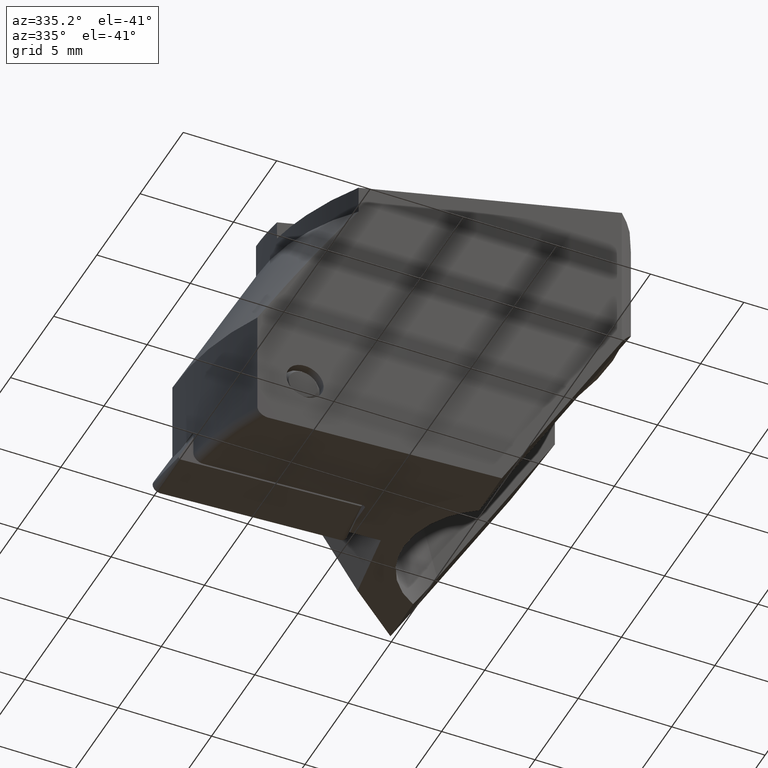
[diagram: clean part render]
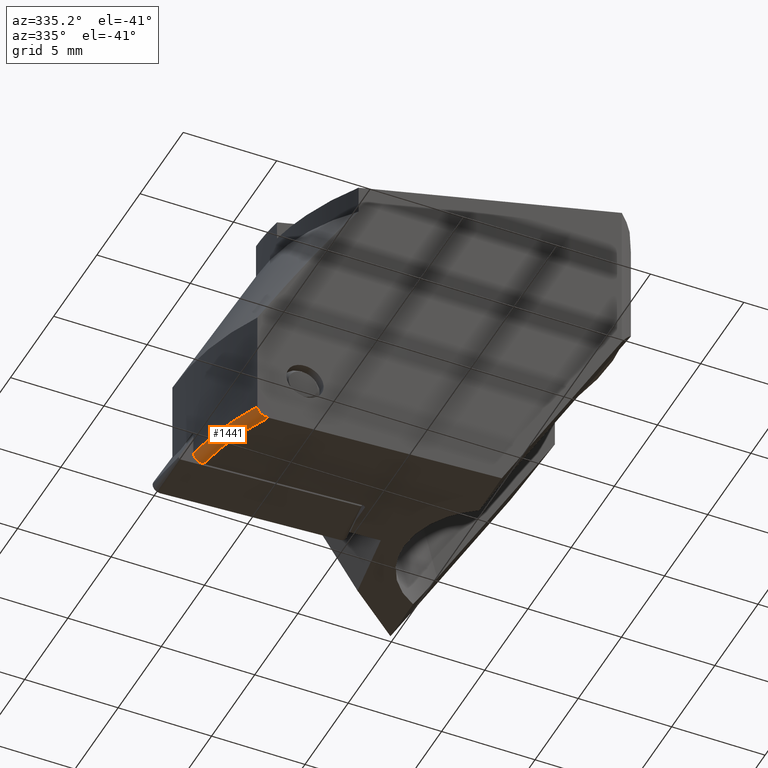
[diagram: same view with one face highlighted and labeled with its STEP entity id]
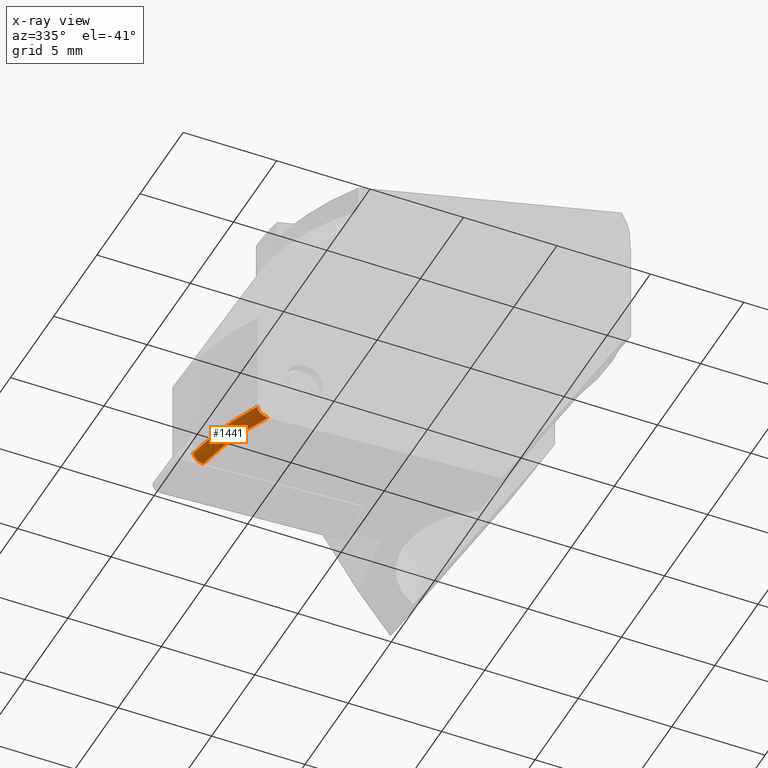
[diagram: x-ray of the same camera — body ghosted, the highlighted face saturated]
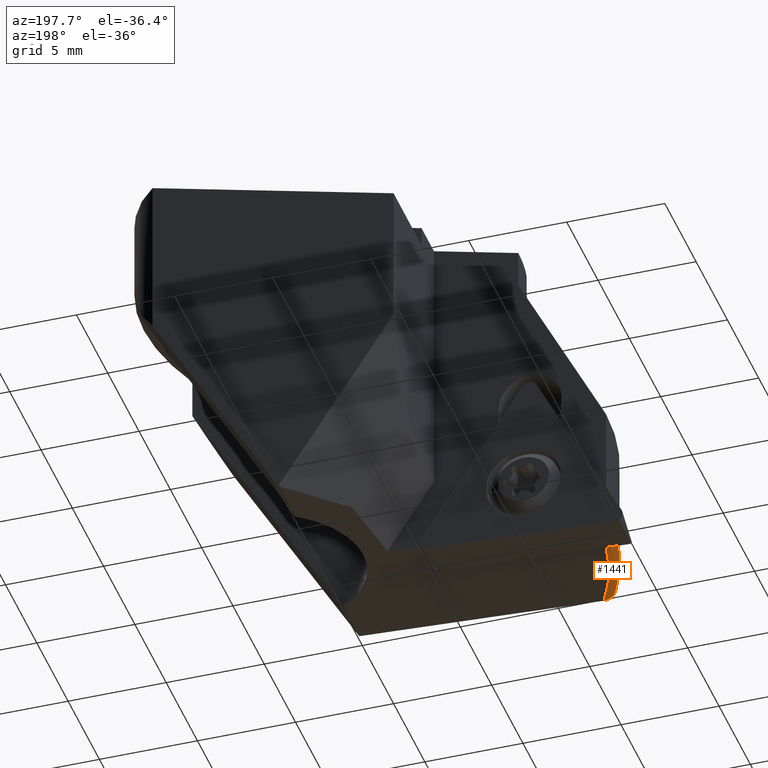
[diagram: same view with one face highlighted and labeled with its STEP entity id]
A machine part, auxiliary view. The second image highlights one B-rep face of the part: STEP entity #1441.
The next image is the same camera in x-ray: the body ghosted, the highlighted face saturated — about 0% of this face is hidden behind the body in this view.
A second angle (auxiliary view) of the same face is appended — the face is thin or edge-on in the first view.
In plain terms, the highlighted face is a freeform B-spline surface patch.
Its self-contained STEP definition (entity closure, byte-faithful):
#815=EDGE_CURVE('NONE',#1947,#1929,#2308,.T.);
#1397=EDGE_CURVE('NONE',#2095,#1525,#2959,.F.);
#1441=ADVANCED_FACE('NONE',(#3008),#3009,.F.);
#1525=VERTEX_POINT('NONE',#3103);
#1773=EDGE_CURVE('NONE',#1525,#1947,#3367,.F.);
#1929=VERTEX_POINT('NONE',#3538);
#1931=EDGE_CURVE('NONE',#1929,#2095,#3540,.T.);
#1947=VERTEX_POINT('NONE',#3558);
#2095=VERTEX_POINT('NONE',#3721);
#2308=B_SPLINE_CURVE_WITH_KNOTS('',3,(#3958,#3959,#3960,#3961),.UNSPECIFIED.,.F.,.F.,(4,4),(0.0,1.0),.UNSPECIFIED.);
#2959=B_SPLINE_CURVE_WITH_KNOTS('',3,(#4830,#4831,#4832,#4833,#4834,#4835,#4836,#4837,#4838,#4839),.UNSPECIFIED.,.F.,.F.,(4,3,3,4),(0.0,0.784109076975571,0.833311762842193,1.0),.UNSPECIFIED.);
#3008=FACE_OUTER_BOUND('',#4901,.T.);
#3009=B_SPLINE_SURFACE_WITH_KNOTS('',3,3,((#4902,#4903,#4904,#4905,#4906,#4907,#4908,#4909,#4910,#4911,#4912,#4913,#4914,#4915,#4916,#4917,#4918,#4919,#4920,#4921,#4922,#4923,#4924,#4925,#4926,#4927,#4928,#4929),(#4930,#4931,#4932,#4933,#4934,#4935,#4936,#4937,#4938,#4939,#4940,#4941,#4942,#4943,#4944,#4945,#4946,#4947,#4948,#4949,#4950,#4951,#4952,#4953,#4954,#4955,#4956,#4957),(#4958,#4959,#4960,#4961,#4962,#4963,#4964,#4965,#4966,#4967,#4968,#4969,#4970,#4971,#4972,#4973,#4974,#4975,#4976,#4977,#4978,#4979,#4980,#4981,#4982,#4983,#4984,#4985),(#4986,#4987,#4988,#4989,#4990,#4991,#4992,#4993,#4994,#4995,#4996,#4997,#4998,#4999,#5000,#5001,#5002,#5003,#5004,#5005,#5006,#5007,#5008,#5009,#5010,#5011,#5012,#5013),(#5014,#5015,#5016,#5017,#5018,#5019,#5020,#5021,#5022,#5023,#5024,#5025,#5026,#5027,#5028,#5029,#5030,#5031,#5032,#5033,#5034,#5035,#5036,#5037,#5038,#5039,#5040,#5041),(#5042,#5043,#5044,#5045,#5046,#5047,#5048,#5049,#5050,#5051,#5052,#5053,#5054,#5055,#5056,#5057,#5058,#5059,#5060,#5061,#5062,#5063,#5064,#5065,#5066,#5067,#5068,#5069),(#5070,#5071,#5072,#5073,#5074,#5075,#5076,#5077,#5078,#5079,#5080,#5081,#5082,#5083,#5084,#5085,#5086,#5087,#5088,#5089,#5090,#5091,#5092,#5093,#5094,#5095,#5096,#5097),(#5098,#5099,#5100,#5101,#5102,#5103,#5104,#5105,#5106,#5107,#5108,#5109,#5110,#5111,#5112,#5113,#5114,#5115,#5116,#5117,#5118,#5119,#5120,#5121,#5122,#5123,#5124,#5125),(#5126,#5127,#5128,#5129,#5130,#5131,#5132,#5133,#5134,#5135,#5136,#5137,#5138,#5139,#5140,#5141,#5142,#5143,#5144,#5145,#5146,#5147,#5148,#5149,#5150,#5151,#5152,#5153),(#5154,#5155,#5156,#5157,#5158,#5159,#5160,#5161,#5162,#5163,#5164,#5165,#5166,#5167,#5168,#5169,#5170,#5171,#5172,#5173,#5174,#5175,#5176,#5177,#5178,#5179,#5180,#5181),(#5182,#5183,#5184,#5185,#5186,#5187,#5188,#5189,#5190,#5191,#5192,#5193,#5194,#5195,#5196,#5197,#5198,#5199,#5200,#5201,#5202,#5203,#5204,#5205,#5206,#5207,#5208,#5209),(#5210,#5211,#5212,#5213,#5214,#5215,#5216,#5217,#5218,#5219,#5220,#5221,#5222,#5223,#5224,#5225,#5226,#5227,#5228,#5229,#5230,#5231,#5232,#5233,#5234,#5235,#5236,#5237),(#5238,#5239,#5240,#5241,#5242,#5243,#5244,#5245,#5246,#5247,#5248,#5249,#5250,#5251,#5252,#5253,#5254,#5255,#5256,#5257,#5258,#5259,#5260,#5261,#5262,#5263,#5264,#5265),(#5266,#5267,#5268,#5269,#5270,#5271,#5272,#5273,#5274,#5275,#5276,#5277,#5278,#5279,#5280,#5281,#5282,#5283,#5284,#5285,#5286,#5287,#5288,#5289,#5290,#5291,#5292,#5293)),.UNSPECIFIED.,.F.,.F.,.F.,(4,2,2,2,2,2,4),(4,2,2,2,2,2,2,2,2,2,2,2,2,4),(0.0,0.166650197694737,0.333244673081915,0.500030328588564,0.666521520289064,0.833240173845133,1.0),(0.0,0.0879956456825202,0.228205411992188,0.349816814379433,0.375,0.469036699906455,0.5,0.593700681565247,0.721238614217723,0.75,0.814295539190175,0.875,0.907392792456943,1.0),.UNSPECIFIED.);
#3103=CARTESIAN_POINT('',(-12.4594702937163,-6.45,-21.2390013600951));
#3367=B_SPLINE_CURVE_WITH_KNOTS('',3,(#5768,#5769,#5770,#5771,#5772,#5773,#5774,#5775,#5776,#5777,#5778,#5779,#5780),.UNSPECIFIED.,.F.,.F.,(4,3,3,3,4),(0.0,0.5,0.777353584544422,0.957356232730412,1.0),.UNSPECIFIED.);
#3538=CARTESIAN_POINT('',(-13.3398673353139,-2.09999999999999,-21.8090977916763));
#3540=B_SPLINE_CURVE_WITH_KNOTS('',3,(#6010,#6011,#6012,#6013,#6014,#6015,#6016,#6017,#6018,#6019),.UNSPECIFIED.,.F.,.F.,(4,3,3,4),(0.0,0.5,0.832403654724372,1.0),.UNSPECIFIED.);
#3558=CARTESIAN_POINT('',(-11.8674605682894,-6.45,-21.7319322228152));
#3721=CARTESIAN_POINT('',(-13.8719465108542,-2.10000000000007,-21.3103880141909));
#3958=CARTESIAN_POINT('',(-11.8674605682894,-6.45,-21.7319322228152));
#3959=CARTESIAN_POINT('',(-12.6005236920266,-5.09819614266719,-21.7703504332046));
#3960=CARTESIAN_POINT('',(-13.1010232927651,-3.61954862109321,-21.7965805058113));
#3961=CARTESIAN_POINT('',(-13.3398673353139,-2.09999999999999,-21.8090977916763));
#4830=CARTESIAN_POINT('',(-12.4594702937163,-6.45000000000001,-21.2390013600951));
#4831=CARTESIAN_POINT('',(-13.0113453762902,-5.38394245005102,-21.2668838802629));
#4832=CARTESIAN_POINT('',(-13.4258048450932,-4.24622177429247,-21.2878180322535));
#4833=CARTESIAN_POINT('',(-13.6889443405314,-3.07468743807123,-21.3011286827237));
#4834=CARTESIAN_POINT('',(-13.7054562906074,-3.00117389560672,-21.3019639233465));
#4835=CARTESIAN_POINT('',(-13.7213709119135,-2.92755137663568,-21.302767830676));
#4836=CARTESIAN_POINT('',(-13.7366963752491,-2.85378217357553,-21.3035428803339));
#4837=CARTESIAN_POINT('',(-13.7886157861929,-2.6038678000398,-21.3061685837668));
#4838=CARTESIAN_POINT('',(-13.8337403381941,-2.35237808739274,-21.3084569027345));
#4839=CARTESIAN_POINT('',(-13.8719465108542,-2.10000000000007,-21.3103880141909));
#4901=EDGE_LOOP('',(#7450,#7451,#7452,#7453));
#4902=CARTESIAN_POINT('',(-11.8674605682894,-6.45,-21.7319322228152));
#4903=CARTESIAN_POINT('',(-11.8934357480624,-6.45,-21.7332935129305));
#4904=CARTESIAN_POINT('',(-11.9195109278325,-6.45,-21.7330942339879));
#4905=CARTESIAN_POINT('',(-11.9868233173983,-6.45,-21.7284599014647));
#4906=CARTESIAN_POINT('',(-12.027879986883,-6.45,-21.721569323474));
#4907=CARTESIAN_POINT('',(-12.102223148564,-6.45,-21.7012869652585));
#4908=CARTESIAN_POINT('',(-12.135814559642,-6.45,-21.6888862468341));
#4909=CARTESIAN_POINT('',(-12.1744663893634,-6.45,-21.6704889087367));
#4910=CARTESIAN_POINT('',(-12.1810299622684,-6.45,-21.6672111308045));
#4911=CARTESIAN_POINT('',(-12.2117593625227,-6.45,-21.6511238679792));
#4912=CARTESIAN_POINT('',(-12.2349860462965,-6.45,-21.6367570479794));
#4913=CARTESIAN_POINT('',(-12.2641614018305,-6.45,-21.6155097886811));
#4914=CARTESIAN_POINT('',(-12.2712498677916,-6.45,-21.6100710862916));
#4915=CARTESIAN_POINT('',(-12.2991938249309,-6.45,-21.5874762165404));
#4916=CARTESIAN_POINT('',(-12.3188412287386,-6.45,-21.5689026483223));
#4917=CARTESIAN_POINT('',(-12.361187857112,-6.45,-21.5222263963465));
#4918=CARTESIAN_POINT('',(-12.3824793924643,-6.45,-21.4928959759412));
#4919=CARTESIAN_POINT('',(-12.4042264116818,-6.45,-21.4541813417371));
#4920=CARTESIAN_POINT('',(-12.4080426346996,-6.45,-21.4469619471696));
#4921=CARTESIAN_POINT('',(-12.4197366246579,-6.45,-21.4234377810391));
#4922=CARTESIAN_POINT('',(-12.4267674404909,-6.45,-21.4070436256278));
#4923=CARTESIAN_POINT('',(-12.4384504689129,-6.45,-21.3747010184232));
#4924=CARTESIAN_POINT('',(-12.4433209860007,-6.45,-21.3584681496979));
#4925=CARTESIAN_POINT('',(-12.449371228335,-6.45,-21.3332546411141));
#4926=CARTESIAN_POINT('',(-12.4511995520996,-6.45,-21.3244608738418));
#4927=CARTESIAN_POINT('',(-12.4571226201625,-6.45,-21.2906178491857));
#4928=CARTESIAN_POINT('',(-12.459469291426,-6.45,-21.2646021640789));
#4929=CARTESIAN_POINT('',(-12.4594702937163,-6.45,-21.2390013600951));
#4930=CARTESIAN_POINT('',(-11.989594785995,-6.22477859510233,-21.7383330059396));
#4931=CARTESIAN_POINT('',(-12.0154470018526,-6.22471047601271,-21.7396872114945));
#4932=CARTESIAN_POINT('',(-12.0413332155046,-6.22465071689493,-21.7394830137391));
#4933=CARTESIAN_POINT('',(-12.1080664312658,-6.2245097272146,-21.7348335567274));
#4934=CARTESIAN_POINT('',(-12.1486800150867,-6.22443679668765,-21.7279313678508));
#4935=CARTESIAN_POINT('',(-12.2222718783247,-6.22430377360382,-21.7075997406276));
#4936=CARTESIAN_POINT('',(-12.2555449823379,-6.22424326135596,-21.6951650234566));
#4937=CARTESIAN_POINT('',(-12.2939504082123,-6.22416230579853,-21.6767034204474));
#4938=CARTESIAN_POINT('',(-12.3004716285801,-6.22414833955899,-21.6734137859051));
#4939=CARTESIAN_POINT('',(-12.3310002584614,-6.224082031949,-21.6572676711511));
#4940=CARTESIAN_POINT('',(-12.3540677890723,-6.22402917125399,-21.642846415035));
#4941=CARTESIAN_POINT('',(-12.3830322081476,-6.22396078289566,-21.6215339171695));
#4942=CARTESIAN_POINT('',(-12.3900684744304,-6.22394399580907,-21.616079635623));
#4943=CARTESIAN_POINT('',(-12.4178026508285,-6.22387730792457,-21.5934263020398));
#4944=CARTESIAN_POINT('',(-12.4372932533159,-6.22382923076561,-21.5748184821946));
#4945=CARTESIAN_POINT('',(-12.4792746628574,-6.22372515487862,-21.5281154788492));
#4946=CARTESIAN_POINT('',(-12.5003595891917,-6.22367256516053,-21.4988121028597));
#4947=CARTESIAN_POINT('',(-12.5218620718305,-6.22362322248772,-21.4602235408191));
#4948=CARTESIAN_POINT('',(-12.5256387251005,-6.22361396145939,-21.4530184545877));
#4949=CARTESIAN_POINT('',(-12.5372200656832,-6.22358383619191,-21.4295179920337));
#4950=CARTESIAN_POINT('',(-12.5441968008752,-6.22356277256608,-21.4131053213808));
#4951=CARTESIAN_POINT('',(-12.5558061892969,-6.22352419035177,-21.3807003345603));
#4952=CARTESIAN_POINT('',(-12.560655387625,-6.22350653947189,-21.3644250750364));
#4953=CARTESIAN_POINT('',(-12.5666853421655,-6.22348302960692,-21.3391555241674));
#4954=CARTESIAN_POINT('',(-12.568508910468,-6.22347551039096,-21.330343922461));
#4955=CARTESIAN_POINT('',(-12.5744187918051,-6.22344976932231,-21.2964490246642));
#4956=CARTESIAN_POINT('',(-12.5767666311652,-6.22343763476691,-21.2704308049348));
#4957=CARTESIAN_POINT('',(-12.5767571821458,-6.22343682135972,-21.2449270743289));
#4958=CARTESIAN_POINT('',(-12.1053092438514,-5.99599854499618,-21.7443973437069));
#4959=CARTESIAN_POINT('',(-12.1309492292992,-5.99587809727792,-21.7457402224729));
#4960=CARTESIAN_POINT('',(-12.1566173367058,-5.99577004624156,-21.745524132438));
#4961=CARTESIAN_POINT('',(-12.2227833767197,-5.99552443566928,-21.740843165256));
#4962=CARTESIAN_POINT('',(-12.2630467582871,-5.99540762577792,-21.7339224304617));
#4963=CARTESIAN_POINT('',(-12.336016597316,-5.99517504472246,-21.7135532801473));
#4964=CARTESIAN_POINT('',(-12.3690139879955,-5.99506082740945,-21.7010989831452));
#4965=CARTESIAN_POINT('',(-12.4071241488345,-5.99491973601045,-21.6826035649339));
#4966=CARTESIAN_POINT('',(-12.4135960456049,-5.99489576780457,-21.679307724044));
#4967=CARTESIAN_POINT('',(-12.4438969348347,-5.99478321480129,-21.6631309444747));
#4968=CARTESIAN_POINT('',(-12.4668018570839,-5.99469713546141,-21.648681525251));
#4969=CARTESIAN_POINT('',(-12.4955643939709,-5.99458325514262,-21.6273374721407));
#4970=CARTESIAN_POINT('',(-12.5025518039325,-5.99455508062766,-21.6218758874516));
#4971=CARTESIAN_POINT('',(-12.5300930814006,-5.99444249087637,-21.5991971805631));
#4972=CARTESIAN_POINT('',(-12.5494474516393,-5.99435979258909,-21.5805798121284));
#4973=CARTESIAN_POINT('',(-12.5911402969564,-5.99418070329012,-21.5338236852487));
#4974=CARTESIAN_POINT('',(-12.6120787301515,-5.99409021209772,-21.5044887053889));
#4975=CARTESIAN_POINT('',(-12.6333981325695,-5.99399698013196,-21.4659414465818));
#4976=CARTESIAN_POINT('',(-12.6371424024812,-5.993979261618,-21.4587438047777));
#4977=CARTESIAN_POINT('',(-12.6486270423077,-5.99392053033355,-21.4352545949243));
#4978=CARTESIAN_POINT('',(-12.6555538611829,-5.99387778303957,-21.4188170403203));
#4979=CARTESIAN_POINT('',(-12.6670793502985,-5.99379327386293,-21.3863452798375));
#4980=CARTESIAN_POINT('',(-12.6718819072039,-5.99375159261003,-21.3700636629547));
#4981=CARTESIAN_POINT('',(-12.6778585984043,-5.99369825639215,-21.3447879503292));
#4982=CARTESIAN_POINT('',(-12.6796685027201,-5.99368166348773,-21.3359706141303));
#4983=CARTESIAN_POINT('',(-12.6855539669105,-5.99362963223927,-21.3020274757075));
#4984=CARTESIAN_POINT('',(-12.6879040816406,-5.99361647853645,-21.2760443790725));
#4985=CARTESIAN_POINT('',(-12.687890453777,-5.99361753864472,-21.2505407734751));
#4986=CARTESIAN_POINT('',(-12.3235038908265,-5.5323081736295,-21.7558324406062));
#4987=CARTESIAN_POINT('',(-12.3486697884607,-5.53211124402744,-21.7571504866485));
#4988=CARTESIAN_POINT('',(-12.3738984681198,-5.53192977139115,-21.7569055803811));
#4989=CARTESIAN_POINT('',(-12.4389884630129,-5.53153577883907,-21.7521486022903));
#4990=CARTESIAN_POINT('',(-12.4786523629297,-5.53136952104621,-21.745183830415));
#4991=CARTESIAN_POINT('',(-12.5505285521275,-5.5309944226957,-21.7247458299733));
#4992=CARTESIAN_POINT('',(-12.5830292694291,-5.53079282262416,-21.7122623151744));
#4993=CARTESIAN_POINT('',(-12.6205339462919,-5.53056583976561,-21.6937232470087));
#4994=CARTESIAN_POINT('',(-12.6269045786329,-5.53052754871222,-21.6904194644558));
#4995=CARTESIAN_POINT('',(-12.6567375541259,-5.53034826376414,-21.6742037329985));
#4996=CARTESIAN_POINT('',(-12.6793073647259,-5.53021272131721,-21.6597190757764));
#4997=CARTESIAN_POINT('',(-12.7076554771848,-5.53002435209193,-21.6383387629876));
#4998=CARTESIAN_POINT('',(-12.7145427289205,-5.52997698713715,-21.6328691492061));
#4999=CARTESIAN_POINT('',(-12.7416894795505,-5.52978552151725,-21.6101657615087));
#5000=CARTESIAN_POINT('',(-12.7607674321688,-5.52963987950062,-21.5915481798478));
#5001=CARTESIAN_POINT('',(-12.8019026351908,-5.52932602129241,-21.5446701781657));
#5002=CARTESIAN_POINT('',(-12.8225778549488,-5.52916886604806,-21.5152310709421));
#5003=CARTESIAN_POINT('',(-12.8435905462954,-5.52900176979634,-21.476700960763));
#5004=CARTESIAN_POINT('',(-12.847279345212,-5.52897050227563,-21.4695126884215));
#5005=CARTESIAN_POINT('',(-12.8585985363297,-5.52886705817902,-21.4460364504287));
#5006=CARTESIAN_POINT('',(-12.8654445050059,-5.52879206387107,-21.4295468436478));
#5007=CARTESIAN_POINT('',(-12.8768295548896,-5.52863546552613,-21.3969448143991));
#5008=CARTESIAN_POINT('',(-12.881539792319,-5.52855447309998,-21.3806786096997));
#5009=CARTESIAN_POINT('',(-12.8874135437384,-5.52845562817987,-21.355429767274));
#5010=CARTESIAN_POINT('',(-12.8891987442573,-5.52842594366731,-21.3466110306312));
#5011=CARTESIAN_POINT('',(-12.8950582306835,-5.52834213032253,-21.3125805323096));
#5012=CARTESIAN_POINT('',(-12.8974304032299,-5.52834506307158,-21.2866955491105));
#5013=CARTESIAN_POINT('',(-12.8974151263104,-5.52835010473382,-21.2611234362574));
#5014=CARTESIAN_POINT('',(-12.4259694540639,-5.29743101284526,-21.7612024332285));
#5015=CARTESIAN_POINT('',(-12.4508735109118,-5.29720992057299,-21.7625069740657));
#5016=CARTESIAN_POINT('',(-12.4758820747841,-5.29700134544584,-21.7622452077667));
#5017=CARTESIAN_POINT('',(-12.5404678572264,-5.29655594300749,-21.7574439748925));
#5018=CARTESIAN_POINT('',(-12.5798868368924,-5.29637693788536,-21.7504539411388));
#5019=CARTESIAN_POINT('',(-12.6512978130476,-5.2959483186422,-21.7299849454995));
#5020=CARTESIAN_POINT('',(-12.683579852807,-5.29570928096435,-21.7174919082847));
#5021=CARTESIAN_POINT('',(-12.720774315762,-5.29545653099893,-21.6989429973522));
#5022=CARTESIAN_POINT('',(-12.7270930078264,-5.29541391687795,-21.695637478026));
#5023=CARTESIAN_POINT('',(-12.7566858115465,-5.29521413422889,-21.6794134523367));
#5024=CARTESIAN_POINT('',(-12.7790831160027,-5.29506233617223,-21.664921713864));
#5025=CARTESIAN_POINT('',(-12.8072186794317,-5.29484495530095,-21.6435366888223));
#5026=CARTESIAN_POINT('',(-12.8140546273395,-5.29478978370529,-21.6380663471983));
#5027=CARTESIAN_POINT('',(-12.8409997415652,-5.29456532963825,-21.6153636445579));
#5028=CARTESIAN_POINT('',(-12.8599375006919,-5.29439135454344,-21.5967553930002));
#5029=CARTESIAN_POINT('',(-12.9008036001603,-5.29401771891882,-21.5498086473966));
#5030=CARTESIAN_POINT('',(-12.9213620813415,-5.29383179065934,-21.5202970312938));
#5031=CARTESIAN_POINT('',(-12.9422511219801,-5.29363471476705,-21.4817427883917));
#5032=CARTESIAN_POINT('',(-12.9459168160341,-5.2935984431137,-21.4745564370318));
#5033=CARTESIAN_POINT('',(-12.9571671679123,-5.29347940171483,-21.4510818871564));
#5034=CARTESIAN_POINT('',(-12.9639820837349,-5.29339454630993,-21.4345650658736));
#5035=CARTESIAN_POINT('',(-12.9753103199862,-5.29321343746632,-21.4018994299286));
#5036=CARTESIAN_POINT('',(-12.9799747296542,-5.29311809769984,-21.3856549229703));
#5037=CARTESIAN_POINT('',(-12.9857985842852,-5.29300493936382,-21.3604390078607));
#5038=CARTESIAN_POINT('',(-12.9875726697121,-5.29297170161698,-21.351624570823));
#5039=CARTESIAN_POINT('',(-12.9934303239542,-5.29288404369757,-21.317554839948));
#5040=CARTESIAN_POINT('',(-12.9958221266907,-5.29290499363577,-21.2917327766196));
#5041=CARTESIAN_POINT('',(-12.9958093773168,-5.29291214325788,-21.2660920544925));
#5042=CARTESIAN_POINT('',(-12.6176642184953,-4.8217746362202,-21.7712487301325));
#5043=CARTESIAN_POINT('',(-12.6421233631384,-4.82152993391352,-21.7725303604227));
#5044=CARTESIAN_POINT('',(-12.6667325587149,-4.82129899119692,-21.7722408409163));
#5045=CARTESIAN_POINT('',(-12.7303605660116,-4.82083265942423,-21.767366018075));
#5046=CARTESIAN_POINT('',(-12.7692668073181,-4.82067766868239,-21.7603331090406));
#5047=CARTESIAN_POINT('',(-12.8397320647169,-4.82023379570898,-21.7398023217988));
#5048=CARTESIAN_POINT('',(-12.8715804832197,-4.81996249115442,-21.7272853128602));
#5049=CARTESIAN_POINT('',(-12.9082217403666,-4.81968526954905,-21.7087037655611));
#5050=CARTESIAN_POINT('',(-12.914447556288,-4.81963863215606,-21.7053924254702));
#5051=CARTESIAN_POINT('',(-12.9436097808722,-4.81941978406766,-21.6891403006239));
#5052=CARTESIAN_POINT('',(-12.9656944226656,-4.81925290205659,-21.6746242761255));
#5053=CARTESIAN_POINT('',(-12.9934415133184,-4.81900289603549,-21.6532165859286));
#5054=CARTESIAN_POINT('',(-13.0001834141635,-4.8189385910801,-21.6477415041437));
#5055=CARTESIAN_POINT('',(-13.0267579146642,-4.8186745434096,-21.6250266001049));
#5056=CARTESIAN_POINT('',(-13.0454356571047,-4.81846439930333,-21.6064257817314));
#5057=CARTESIAN_POINT('',(-13.0857886996072,-4.81801353334084,-21.5593636849743));
#5058=CARTESIAN_POINT('',(-13.1061142549337,-4.8177896539315,-21.5297427047414));
#5059=CARTESIAN_POINT('',(-13.1267517573378,-4.81754947888208,-21.4911787581404));
#5060=CARTESIAN_POINT('',(-13.1303709772072,-4.81750579210834,-21.483998553518));
#5061=CARTESIAN_POINT('',(-13.1414817606883,-4.81736285155446,-21.460530971593));
#5062=CARTESIAN_POINT('',(-13.1482287304054,-4.81726162433528,-21.4439647538531));
#5063=CARTESIAN_POINT('',(-13.1594352690736,-4.81703842527412,-21.4111798847349));
#5064=CARTESIAN_POINT('',(-13.1640135254077,-4.81691794639051,-21.3949589166233));
#5065=CARTESIAN_POINT('',(-13.1697416937554,-4.81677792366245,-21.3697815518834));
#5066=CARTESIAN_POINT('',(-13.171493193384,-4.81673750776739,-21.3609696238623));
#5067=CARTESIAN_POINT('',(-13.1773323538652,-4.81663772410592,-21.326825104262));
#5068=CARTESIAN_POINT('',(-13.1797502136342,-4.81668262370694,-21.3011054144816));
#5069=CARTESIAN_POINT('',(-13.1797433959033,-4.816689090385,-21.2753837071545));
#5070=CARTESIAN_POINT('',(-12.7069387000886,-4.58088924757808,-21.7759274074595));
#5071=CARTESIAN_POINT('',(-12.7312148640521,-4.58064512630175,-21.7771996371303));
#5072=CARTESIAN_POINT('',(-12.7556410197652,-4.58042526010735,-21.7768990310366));
#5073=CARTESIAN_POINT('',(-12.818800637366,-4.58001397931684,-21.7719941126934));
#5074=CARTESIAN_POINT('',(-12.8574250512665,-4.57991879962944,-21.7649428687051));
#5075=CARTESIAN_POINT('',(-12.927389213613,-4.57954712598453,-21.7443802108128));
#5076=CARTESIAN_POINT('',(-12.9590153691271,-4.57929308355129,-21.7318483643939));
#5077=CARTESIAN_POINT('',(-12.9954137119247,-4.57901718850319,-21.7132440086457));
#5078=CARTESIAN_POINT('',(-13.0015986051342,-4.57897085653651,-21.7099285818584));
#5079=CARTESIAN_POINT('',(-13.0305704838193,-4.57875346872698,-21.6936566387669));
#5080=CARTESIAN_POINT('',(-13.0525150151463,-4.57858778447538,-21.6791233976226));
#5081=CARTESIAN_POINT('',(-13.0800862389666,-4.57833420434493,-21.6576977388946));
#5082=CARTESIAN_POINT('',(-13.0867854103336,-4.57826858281942,-21.6522186409062));
#5083=CARTESIAN_POINT('',(-13.1131909873527,-4.57799797156512,-21.6294908343513));
#5084=CARTESIAN_POINT('',(-13.1317489434687,-4.57778002438976,-21.6108881057613));
#5085=CARTESIAN_POINT('',(-13.1718580885139,-4.57731177284901,-21.5637794264598));
#5086=CARTESIAN_POINT('',(-13.1920674690862,-4.57707874603547,-21.5341216316328));
#5087=CARTESIAN_POINT('',(-13.2125770792648,-4.57682547085729,-21.4955721583402));
#5088=CARTESIAN_POINT('',(-13.2161725429697,-4.57678047854836,-21.4883961186632));
#5089=CARTESIAN_POINT('',(-13.2272103518298,-4.57663564251798,-21.4649334524531));
#5090=CARTESIAN_POINT('',(-13.233917338421,-4.57653670155332,-21.4483445524789));
#5091=CARTESIAN_POINT('',(-13.2450517414874,-4.57631658578086,-21.41550287732));
#5092=CARTESIAN_POINT('',(-13.2495855890889,-4.57619698229664,-21.3992830562269));
#5093=CARTESIAN_POINT('',(-13.2552619734358,-4.57606152019119,-21.3741102984181));
#5094=CARTESIAN_POINT('',(-13.2569999651309,-4.57602328821717,-21.3652962384805));
#5095=CARTESIAN_POINT('',(-13.2628152221018,-4.57593582328212,-21.3311149810533));
#5096=CARTESIAN_POINT('',(-13.2652354858139,-4.5759980712169,-21.3054340600959));
#5097=CARTESIAN_POINT('',(-13.265232073183,-4.57600174136644,-21.2797000414651));
#5098=CARTESIAN_POINT('',(-12.8714123127239,-4.09513232217278,-21.7845471042484));
#5099=CARTESIAN_POINT('',(-12.8955310015677,-4.0949107020316,-21.7858109790454));
#5100=CARTESIAN_POINT('',(-12.9197023689076,-4.09471561095688,-21.7855054560256));
#5101=CARTESIAN_POINT('',(-12.9820687130761,-4.09437003063374,-21.7805841923661));
#5102=CARTESIAN_POINT('',(-13.0200760127629,-4.09431663631183,-21.7735193874696));
#5103=CARTESIAN_POINT('',(-13.0889946821827,-4.09401268433546,-21.7528883979544));
#5104=CARTESIAN_POINT('',(-13.1201782820574,-4.09378594531149,-21.7403074857723));
#5105=CARTESIAN_POINT('',(-13.1562416554407,-4.09353253098221,-21.7216076193124));
#5106=CARTESIAN_POINT('',(-13.1623685738615,-4.09348989064866,-21.7182748553013));
#5107=CARTESIAN_POINT('',(-13.1910640259449,-4.09328919821549,-21.701917899252));
#5108=CARTESIAN_POINT('',(-13.212784725362,-4.09313438180005,-21.6873089531438));
#5109=CARTESIAN_POINT('',(-13.2400572055665,-4.09289218974181,-21.665794119096));
#5110=CARTESIAN_POINT('',(-13.2466822774593,-4.09282913968243,-21.660293866255));
#5111=CARTESIAN_POINT('',(-13.2727898206887,-4.09256787740429,-21.6374871305707));
#5112=CARTESIAN_POINT('',(-13.2911244592991,-4.09235467299752,-21.6188392796624));
#5113=CARTESIAN_POINT('',(-13.3307193699584,-4.09189222712969,-21.5716979332835));
#5114=CARTESIAN_POINT('',(-13.3506425445372,-4.09165831584995,-21.54207927046));
#5115=CARTESIAN_POINT('',(-13.3708288842812,-4.09139877206697,-21.5037015847831));
#5116=CARTESIAN_POINT('',(-13.374370245476,-4.09135186154873,-21.4965442941104));
#5117=CARTESIAN_POINT('',(-13.3852489004468,-4.09119872800992,-21.4731098527855));
#5118=CARTESIAN_POINT('',(-13.3918704721125,-4.09109082413463,-21.4564903531794));
#5119=CARTESIAN_POINT('',(-13.4028762976465,-4.09084957448534,-21.423553401396));
#5120=CARTESIAN_POINT('',(-13.4073648891896,-4.09071800717342,-21.4072709020784));
#5121=CARTESIAN_POINT('',(-13.4129914229663,-4.09056329609144,-21.3820177637404));
#5122=CARTESIAN_POINT('',(-13.4147157000848,-4.0905181992165,-21.3731786588598));
#5123=CARTESIAN_POINT('',(-13.4204894442297,-4.09040425037279,-21.3389276759192));
#5124=CARTESIAN_POINT('',(-13.4229031197759,-4.09044689220345,-21.3132521155143));
#5125=CARTESIAN_POINT('',(-13.4229015400629,-4.09043492219609,-21.2876751779049));
#5126=CARTESIAN_POINT('',(-12.9462292351621,-3.85093212132215,-21.7884680930062));
#5127=CARTESIAN_POINT('',(-12.9702173557084,-3.85072317732861,-21.7897249097824));
#5128=CARTESIAN_POINT('',(-12.9942806257769,-3.85049622959369,-21.7894133496755));
#5129=CARTESIAN_POINT('',(-13.0563973799945,-3.84999725054783,-21.7844786418058));
#5130=CARTESIAN_POINT('',(-13.0942815772314,-3.84978009868391,-21.777406497153));
#5131=CARTESIAN_POINT('',(-13.1629526066036,-3.84925591484394,-21.7567539490543));
#5132=CARTESIAN_POINT('',(-13.194013634376,-3.84896171511781,-21.7441604725573));
#5133=CARTESIAN_POINT('',(-13.2298832652367,-3.8487226181818,-21.7254413610526));
#5134=CARTESIAN_POINT('',(-13.2359772301104,-3.84868225333187,-21.7221052206259));
#5135=CARTESIAN_POINT('',(-13.2645180508908,-3.84849184775047,-21.7057318543019));
#5136=CARTESIAN_POINT('',(-13.2861203898183,-3.8483437115733,-21.6911085140314));
#5137=CARTESIAN_POINT('',(-13.3132450693865,-3.84811395216909,-21.6695739325954));
#5138=CARTESIAN_POINT('',(-13.3198343561755,-3.84805428137146,-21.6640687641437));
#5139=CARTESIAN_POINT('',(-13.3458022367538,-3.8478073859215,-21.6412417545886));
#5140=CARTESIAN_POINT('',(-13.3640464654351,-3.84760670894418,-21.6225750444545));
#5141=CARTESIAN_POINT('',(-13.4034417146672,-3.84717057222762,-21.5754004133348));
#5142=CARTESIAN_POINT('',(-13.423217745593,-3.84694920202562,-21.5457900700578));
#5143=CARTESIAN_POINT('',(-13.443294006139,-3.84670533376506,-21.5074092598835));
#5144=CARTESIAN_POINT('',(-13.4468181585969,-3.84666164363434,-21.500249856561));
#5145=CARTESIAN_POINT('',(-13.4576424618692,-3.84652023577418,-21.4768077520427));
#5146=CARTESIAN_POINT('',(-13.4642196976975,-3.8464224516369,-21.4601852844127));
#5147=CARTESIAN_POINT('',(-13.4751407468793,-3.8462062555848,-21.4272468845219));
#5148=CARTESIAN_POINT('',(-13.4796120897808,-3.84608931936908,-21.4109559552247));
#5149=CARTESIAN_POINT('',(-13.4852131218207,-3.84595210707397,-21.3856892493605));
#5150=CARTESIAN_POINT('',(-13.486925895508,-3.84591218211011,-21.3768464937697));
#5151=CARTESIAN_POINT('',(-13.4926314221157,-3.84581132798366,-21.3425902962368));
#5152=CARTESIAN_POINT('',(-13.4950221341043,-3.84584915470016,-21.3168948081169));
#5153=CARTESIAN_POINT('',(-13.4950154291262,-3.84583556890953,-21.2913194900002));
#5154=CARTESIAN_POINT('',(-13.0831968588135,-3.35633505198439,-21.7956462619953));
#5155=CARTESIAN_POINT('',(-13.106902312435,-3.35616120585739,-21.7968878624543));
#5156=CARTESIAN_POINT('',(-13.1306805142779,-3.35600693154657,-21.7965574462296));
#5157=CARTESIAN_POINT('',(-13.1920619854129,-3.35570912321984,-21.7915744675911));
#5158=CARTESIAN_POINT('',(-13.2294987343267,-3.35562743106111,-21.7844699575119));
#5159=CARTESIAN_POINT('',(-13.2973879417637,-3.35535878951729,-21.7637590786605));
#5160=CARTESIAN_POINT('',(-13.3281064262848,-3.3551852979395,-21.7511409936397));
#5161=CARTESIAN_POINT('',(-13.3635923937452,-3.35498694264531,-21.7324063073768));
#5162=CARTESIAN_POINT('',(-13.3696214047425,-3.35495319326005,-21.7290676638223));
#5163=CARTESIAN_POINT('',(-13.3978587888271,-3.35479328174733,-21.7126824527376));
#5164=CARTESIAN_POINT('',(-13.4192325752409,-3.354666760883,-21.6980492629433));
#5165=CARTESIAN_POINT('',(-13.4460787325888,-3.35447645423577,-21.6764956144762));
#5166=CARTESIAN_POINT('',(-13.4526012197046,-3.35442745676619,-21.6709853051253));
#5167=CARTESIAN_POINT('',(-13.4783117013551,-3.35422590581694,-21.6481339322507));
#5168=CARTESIAN_POINT('',(-13.496400805024,-3.35406469842263,-21.6294338378336));
#5169=CARTESIAN_POINT('',(-13.5354623813767,-3.35371376889571,-21.5821821596767));
#5170=CARTESIAN_POINT('',(-13.5549571586076,-3.35353509269341,-21.5525786797274));
#5171=CARTESIAN_POINT('',(-13.57486826944,-3.35334366916595,-21.5141232989495));
#5172=CARTESIAN_POINT('',(-13.5783682255723,-3.35330957114651,-21.5069510494565));
#5173=CARTESIAN_POINT('',(-13.5891120125495,-3.35320023635982,-21.483477776246));
#5174=CARTESIAN_POINT('',(-13.5956065936202,-3.35312621743311,-21.4668594539325));
#5175=CARTESIAN_POINT('',(-13.6063568492046,-3.35296753570596,-21.4339549270912));
#5176=CARTESIAN_POINT('',(-13.6108027469593,-3.35288371066636,-21.4176663639002));
#5177=CARTESIAN_POINT('',(-13.6163598143711,-3.35278480263087,-21.392395965811));
#5178=CARTESIAN_POINT('',(-13.6180488796595,-3.35275589029421,-21.3835537399433));
#5179=CARTESIAN_POINT('',(-13.6235948185918,-3.35268081245648,-21.3493132692991));
#5180=CARTESIAN_POINT('',(-13.6259314204546,-3.35270237475136,-21.3235653491014));
#5181=CARTESIAN_POINT('',(-13.6259140213029,-3.35269107670061,-21.2979376966521));
#5182=CARTESIAN_POINT('',(-13.1445062336642,-3.10726297971766,-21.7988593501807));
#5183=CARTESIAN_POINT('',(-13.1680595594871,-3.10711156860039,-21.8000927908533));
#5184=CARTESIAN_POINT('',(-13.191712827569,-3.10697767938953,-21.7997522785536));
#5185=CARTESIAN_POINT('',(-13.2528106578887,-3.10670775789127,-21.7947450506891));
#5186=CARTESIAN_POINT('',(-13.2901128917413,-3.10661838605021,-21.7876254542935));
#5187=CARTESIAN_POINT('',(-13.3577472109871,-3.10637402982124,-21.7668924409105));
#5188=CARTESIAN_POINT('',(-13.3883451602601,-3.10622798618153,-21.7542675308504));
#5189=CARTESIAN_POINT('',(-13.4236412124256,-3.10605607164968,-21.7355365462171));
#5190=CARTESIAN_POINT('',(-13.4296382243826,-3.10602666498484,-21.7321987816743));
#5191=CARTESIAN_POINT('',(-13.4577268106648,-3.10588697354411,-21.7158181640115));
#5192=CARTESIAN_POINT('',(-13.4789904150183,-3.10577539755691,-21.7011895430768));
#5193=CARTESIAN_POINT('',(-13.5057058720137,-3.10561212846396,-21.6796366000925));
#5194=CARTESIAN_POINT('',(-13.5121973505151,-3.10557042975306,-21.674126071124));
#5195=CARTESIAN_POINT('',(-13.5377901234848,-3.10539987643781,-21.651270627842));
#5196=CARTESIAN_POINT('',(-13.5558145451765,-3.10526562862986,-21.6325560117544));
#5197=CARTESIAN_POINT('',(-13.5947421957874,-3.10497363712053,-21.5852605518858));
#5198=CARTESIAN_POINT('',(-13.6141028791463,-3.10482513590509,-21.5556556000798));
#5199=CARTESIAN_POINT('',(-13.6339589948221,-3.10467051037746,-21.5171286798601));
#5200=CARTESIAN_POINT('',(-13.6374520252243,-3.10464243014893,-21.5099457051165));
#5201=CARTESIAN_POINT('',(-13.6481699639759,-3.10455137557909,-21.4864490211004));
#5202=CARTESIAN_POINT('',(-13.6546266161713,-3.10448814972373,-21.469837985775));
#5203=CARTESIAN_POINT('',(-13.6652917496849,-3.10435522723733,-21.4369692058599));
#5204=CARTESIAN_POINT('',(-13.6697299696711,-3.10428609775537,-21.4206916770855));
#5205=CARTESIAN_POINT('',(-13.6752693266454,-3.10420244016663,-21.395431497422));
#5206=CARTESIAN_POINT('',(-13.6769464382157,-3.10417748192541,-21.3865935683061));
#5207=CARTESIAN_POINT('',(-13.6824018700445,-3.10410838977064,-21.3523744495096));
#5208=CARTESIAN_POINT('',(-13.6847078104104,-3.10411477976556,-21.32659421561));
#5209=CARTESIAN_POINT('',(-13.6846848417536,-3.10410739278148,-21.3009125334076));
#5210=CARTESIAN_POINT('',(-13.2528626556956,-2.60592728287279,-21.8045380696301));
#5211=CARTESIAN_POINT('',(-13.2761731019097,-2.60583737625001,-21.8057587941554));
#5212=CARTESIAN_POINT('',(-13.2996177408736,-2.60575374156073,-21.8054028773546));
#5213=CARTESIAN_POINT('',(-13.3602256188134,-2.60556251248139,-21.8003583152464));
#5214=CARTESIAN_POINT('',(-13.3972772418138,-2.6054703638224,-21.79321501093));
#5215=CARTESIAN_POINT('',(-13.4644437387679,-2.60528758841173,-21.7724420120244));
#5216=CARTESIAN_POINT('',(-13.4948234105595,-2.60519801693387,-21.7598018948198));
#5217=CARTESIAN_POINT('',(-13.5298008161567,-2.6050970341043,-21.7410671517734));
#5218=CARTESIAN_POINT('',(-13.5357440162788,-2.6050795970727,-21.737729230766));
#5219=CARTESIAN_POINT('',(-13.563581840926,-2.60499644112891,-21.7213490459588));
#5220=CARTESIAN_POINT('',(-13.5846582255255,-2.60492906577946,-21.7067236997653));
#5221=CARTESIAN_POINT('',(-13.6111495939994,-2.60483603072977,-21.6851686835084));
#5222=CARTESIAN_POINT('',(-13.617587715128,-2.60481269204337,-21.6796571863567));
#5223=CARTESIAN_POINT('',(-13.6429770226541,-2.60471846457557,-21.6567934863574));
#5224=CARTESIAN_POINT('',(-13.6608864496694,-2.60464704842694,-21.6380560037933));
#5225=CARTESIAN_POINT('',(-13.699573703153,-2.60449208864108,-21.5906958259326));
#5226=CARTESIAN_POINT('',(-13.7187055602165,-2.60441353887312,-21.5610951134523));
#5227=CARTESIAN_POINT('',(-13.7384590442576,-2.60433701027895,-21.5224667084505));
#5228=CARTESIAN_POINT('',(-13.7419374713958,-2.60432342927867,-21.5152674361933));
#5229=CARTESIAN_POINT('',(-13.7526007130502,-2.60428068852772,-21.4917323180915));
#5230=CARTESIAN_POINT('',(-13.7589844506333,-2.60425301105717,-21.4751264496225));
#5231=CARTESIAN_POINT('',(-13.769488766237,-2.60419999051557,-21.4422987362614));
#5232=CARTESIAN_POINT('',(-13.7739023773379,-2.60417460572266,-21.4260294128841));
#5233=CARTESIAN_POINT('',(-13.7793972139888,-2.60414408125692,-21.4007738022063));
#5234=CARTESIAN_POINT('',(-13.7810500704211,-2.60413502070832,-21.3919391535309));
#5235=CARTESIAN_POINT('',(-13.78634408844,-2.60410907079257,-21.3577442600129));
#5236=CARTESIAN_POINT('',(-13.7885955027779,-2.60410891699446,-21.3319132575812));
#5237=CARTESIAN_POINT('',(-13.7885726508697,-2.60410798052002,-21.3061663869261));
#5238=CARTESIAN_POINT('',(-13.3000276686062,-2.35346376641598,-21.8070098832168));
#5239=CARTESIAN_POINT('',(-13.3232473781768,-2.35341293338462,-21.8082260522716));
#5240=CARTESIAN_POINT('',(-13.3466006437607,-2.35337176803275,-21.8078644251841));
#5241=CARTESIAN_POINT('',(-13.4069723833737,-2.35328025435895,-21.8028052161908));
#5242=CARTESIAN_POINT('',(-13.4438798786616,-2.35323895102778,-21.7956518220966));
#5243=CARTESIAN_POINT('',(-13.5107922044084,-2.35316106066596,-21.774858810921));
#5244=CARTESIAN_POINT('',(-13.541059455354,-2.35312457477184,-21.762209541427));
#5245=CARTESIAN_POINT('',(-13.5759081447994,-2.35306808733824,-21.7434673355812));
#5246=CARTESIAN_POINT('',(-13.581829534824,-2.35305827806775,-21.7401283787358));
#5247=CARTESIAN_POINT('',(-13.6095654088017,-2.35301144185325,-21.7237440321825));
#5248=CARTESIAN_POINT('',(-13.6305647673201,-2.35297332651012,-21.7091173925387));
#5249=CARTESIAN_POINT('',(-13.6569627625882,-2.35292349313399,-21.6875596002175));
#5250=CARTESIAN_POINT('',(-13.6633785386183,-2.35291121695859,-21.6820473553097));
#5251=CARTESIAN_POINT('',(-13.6886821036065,-2.35286232255911,-21.6591794728861));
#5252=CARTESIAN_POINT('',(-13.7065412267068,-2.35282678177247,-21.6404336502791));
#5253=CARTESIAN_POINT('',(-13.7451220261043,-2.35274992260871,-21.5930525482854));
#5254=CARTESIAN_POINT('',(-13.764159165087,-2.35271115263168,-21.5634575516159));
#5255=CARTESIAN_POINT('',(-13.7838650144707,-2.35267592408044,-21.5247992115504));
#5256=CARTESIAN_POINT('',(-13.7873361451738,-2.35266877008881,-21.517594482505));
#5257=CARTESIAN_POINT('',(-13.7979727499284,-2.35264413981224,-21.4940450059446));
#5258=CARTESIAN_POINT('',(-13.8043245435594,-2.35262483048005,-21.4774379258737));
#5259=CARTESIAN_POINT('',(-13.8147603090959,-2.35258745808401,-21.4446176642182));
#5260=CARTESIAN_POINT('',(-13.8191610204136,-2.35256938564863,-21.4283467165416));
#5261=CARTESIAN_POINT('',(-13.8246349621896,-2.35254485673051,-21.4030872248343));
#5262=CARTESIAN_POINT('',(-13.8262775261011,-2.3525369137685,-21.3942521602638));
#5263=CARTESIAN_POINT('',(-13.8315077683916,-2.35250971981892,-21.3600622700223));
#5264=CARTESIAN_POINT('',(-13.8337392728028,-2.35249689501345,-21.3342140001602));
#5265=CARTESIAN_POINT('',(-13.8337221099285,-2.35249849764302,-21.3084559813962));
#5266=CARTESIAN_POINT('',(-13.3398673353139,-2.09999999999999,-21.8090977916763));
#5267=CARTESIAN_POINT('',(-13.36306845792,-2.09999999999999,-21.8103135593213));
#5268=CARTESIAN_POINT('',(-13.3863709892939,-2.09999999999999,-21.8099527508455));
#5269=CARTESIAN_POINT('',(-13.4465659425426,-2.09999999999999,-21.8048943386608));
#5270=CARTESIAN_POINT('',(-13.4833205571474,-2.09999999999999,-21.7977401358603));
#5271=CARTESIAN_POINT('',(-13.5499758877907,-2.09999999999999,-21.7769301113165));
#5272=CARTESIAN_POINT('',(-13.58013524559,-2.09999999999999,-21.7642666936127));
#5273=CARTESIAN_POINT('',(-13.6149144311788,-2.09999999999999,-21.7454943540244));
#5274=CARTESIAN_POINT('',(-13.6208234044131,-2.09999999999999,-21.7421501121838));
#5275=CARTESIAN_POINT('',(-13.6484984993659,-2.09999999999999,-21.7257405471647));
#5276=CARTESIAN_POINT('',(-13.6694440366906,-2.09999999999999,-21.7110934306876));
#5277=CARTESIAN_POINT('',(-13.6957676124196,-2.09999999999999,-21.6895127249111));
#5278=CARTESIAN_POINT('',(-13.7021647196218,-2.09999999999999,-21.6839951553787));
#5279=CARTESIAN_POINT('',(-13.7273927099555,-2.09999999999999,-21.6611077986599));
#5280=CARTESIAN_POINT('',(-13.7451940954908,-2.09999999999999,-21.6423518050603));
#5281=CARTESIAN_POINT('',(-13.7836450464814,-2.09999999999999,-21.5949661675378));
#5282=CARTESIAN_POINT('',(-13.8026124135827,-2.09999999999999,-21.5653838407499));
#5283=CARTESIAN_POINT('',(-13.8222503476621,-2.09999999999999,-21.5267714519981));
#5284=CARTESIAN_POINT('',(-13.8257091633967,-2.09999999999999,-21.5195711852847));
#5285=CARTESIAN_POINT('',(-13.8363070059219,-2.09999999999999,-21.496026238694));
#5286=CARTESIAN_POINT('',(-13.842633689849,-2.1,-21.4794069853322));
#5287=CARTESIAN_POINT('',(-13.8530271940731,-2.10000000000001,-21.4465535291225));
#5288=CARTESIAN_POINT('',(-13.8574103876316,-2.10000000000001,-21.4302620923404));
#5289=CARTESIAN_POINT('',(-13.8628642677373,-2.10000000000002,-21.4049779050713));
#5290=CARTESIAN_POINT('',(-13.8645011145348,-2.10000000000002,-21.396135496749));
#5291=CARTESIAN_POINT('',(-13.8697150087384,-2.10000000000003,-21.3619272207303));
#5292=CARTESIAN_POINT('',(-13.8719465030691,-2.10000000000003,-21.3360864101244));
#5293=CARTESIAN_POINT('',(-13.8719465108542,-2.10000000000003,-21.3103880141909));
#5768=CARTESIAN_POINT('',(-11.8674605682894,-6.45,-21.7319322228152));
#5769=CARTESIAN_POINT('',(-12.0106468469518,-6.45,-21.7394362350104));
#5770=CARTESIAN_POINT('',(-12.1578572144117,-6.45,-21.6984870925847));
#5771=CARTESIAN_POINT('',(-12.2711122396982,-6.45,-21.6100825145091));
#5772=CARTESIAN_POINT('',(-12.33393561416,-6.45,-21.5610438612703));
#5773=CARTESIAN_POINT('',(-12.3859189219274,-6.45,-21.4970247917045));
#5774=CARTESIAN_POINT('',(-12.4188568198595,-6.45,-21.4245555871746));
#5775=CARTESIAN_POINT('',(-12.440233536022,-6.45,-21.377523028541));
#5776=CARTESIAN_POINT('',(-12.4534470951353,-6.45,-21.3278236544697));
#5777=CARTESIAN_POINT('',(-12.457799111519,-6.45,-21.2761254958005));
#5778=CARTESIAN_POINT('',(-12.4588301317606,-6.45,-21.2638778746196));
#5779=CARTESIAN_POINT('',(-12.4594698149512,-6.45,-21.2512301235861));
#5780=CARTESIAN_POINT('',(-12.4594702937163,-6.45,-21.2390013600951));
#6010=CARTESIAN_POINT('',(-13.3398673353139,-2.09999999999999,-21.8090977916763));
#6011=CARTESIAN_POINT('',(-13.4754778599285,-2.09999999999999,-21.8162039516214));
#6012=CARTESIAN_POINT('',(-13.613641355773,-2.09999999999999,-21.7666266919642));
#6013=CARTESIAN_POINT('',(-13.7132653247336,-2.09999999999999,-21.6738670680815));
#6014=CARTESIAN_POINT('',(-13.7794960674949,-2.09999999999999,-21.6121997921026));
#6015=CARTESIAN_POINT('',(-13.828691512265,-2.09999999999999,-21.5321968458516));
#6016=CARTESIAN_POINT('',(-13.8530885732157,-2.09999999999999,-21.4453777688369));
#6017=CARTESIAN_POINT('',(-13.8653894555697,-2.09999999999999,-21.4016040022098));
#6018=CARTESIAN_POINT('',(-13.871946497065,-2.09999999999999,-21.3559060361415));
#6019=CARTESIAN_POINT('',(-13.8719465108542,-2.09999999999999,-21.3103880141909));
#7450=ORIENTED_EDGE('',*,*,#1773,.F.);
#7451=ORIENTED_EDGE('',*,*,#1397,.F.);
#7452=ORIENTED_EDGE('',*,*,#1931,.F.);
#7453=ORIENTED_EDGE('',*,*,#815,.F.);